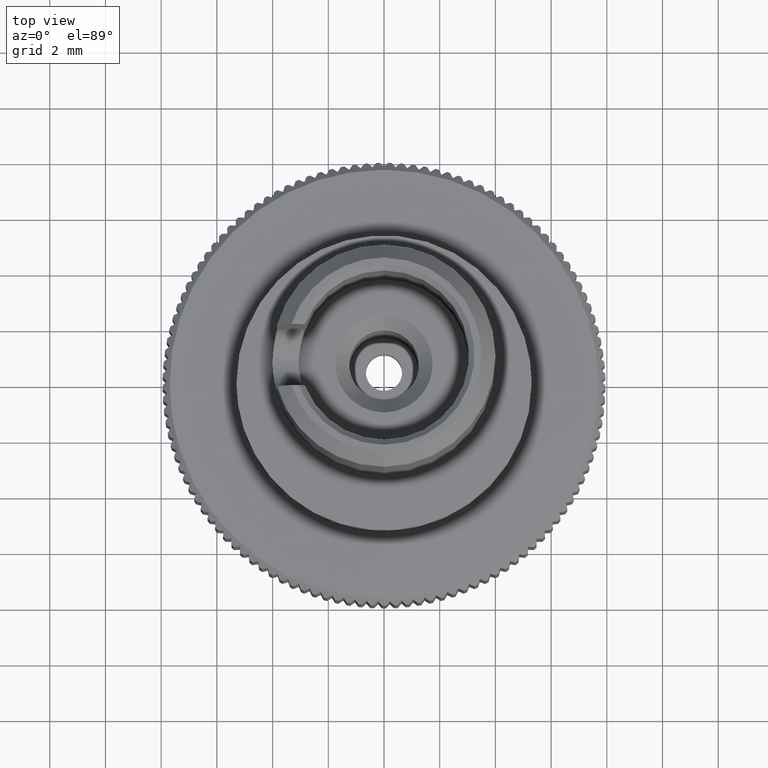
[diagram: clean part render]
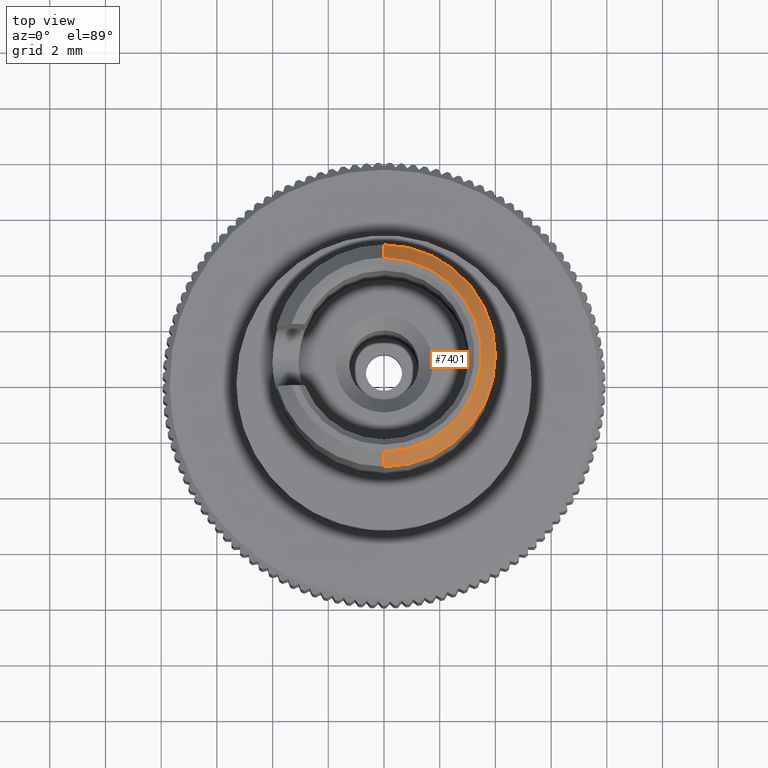
[diagram: same view with one face highlighted and labeled with its STEP entity id]
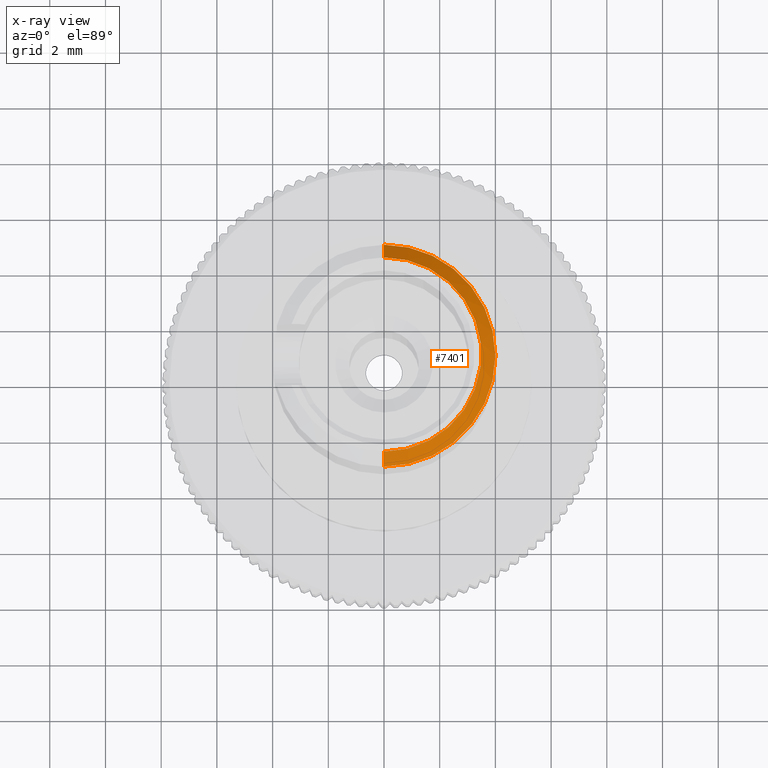
[diagram: x-ray of the same camera — body ghosted, the highlighted face saturated]
A machine part, top view. The second image highlights one B-rep face of the part: STEP entity #7401.
The next image is the same camera in x-ray: the body ghosted, the highlighted face saturated — about 0% of this face is hidden behind the body in this view.
In plain terms, the highlighted conical surface has half-angle 45 deg.
Its self-contained STEP definition (entity closure, byte-faithful):
#1290 = DIRECTION ( 'NONE',  ( 0.000000000000000000, 0.9975027964162092031, -0.07062698593202719477 ) ) ;
#1470 = AXIS2_PLACEMENT_3D ( 'NONE', #6273, #7256, #5359 ) ;
#1614 = EDGE_LOOP ( 'NONE', ( #12931, #9841, #10230, #10564 ) ) ;
#1899 = EDGE_CURVE ( 'NONE', #1946, #8941, #11347, .T. ) ;
#1946 = VERTEX_POINT ( 'NONE', #6205 ) ;
#1989 = EDGE_CURVE ( 'NONE', #9124, #1946, #7192, .T. ) ;
#2075 = EDGE_CURVE ( 'NONE', #9124, #8709, #2132, .T. ) ;
#2132 = CIRCLE ( 'NONE', #12917, 3.500000000558781466 ) ;
#3390 = CARTESIAN_POINT ( 'NONE',  ( -1.279750473368220906E-16, 4.897750020000000148, 12.53797439399999902 ) ) ;
#3482 = DIRECTION ( 'NONE',  ( -2.559500947537984150E-16, -0.07062698593202709763, -0.9975027964162093141 ) ) ;
#4811 = CARTESIAN_POINT ( 'NONE',  ( 2.358764014629480996E-31, 0.9430523269859386604, 13.31923373580156067 ) ) ;
#5359 = DIRECTION ( 'NONE',  ( 0.000000000000000000, 0.9975027964162805905, -0.07062698593101973676 ) ) ;
#6205 = CARTESIAN_POINT ( 'NONE',  ( 3.618836723583852235E-16, -3.082272351946662603, 13.10299028149180245 ) ) ;
#6273 = CARTESIAN_POINT ( 'NONE',  ( 0.000000000000000000, 0.9077388340312130266, 12.82048233774557922 ) ) ;
#6683 = LINE ( 'NONE', #11104, #7903 ) ;
#6689 = CONICAL_SURFACE ( 'NONE', #10733, 3.500000000558726398, 0.7853981633002439233 ) ;
#6817 = DIRECTION ( 'NONE',  ( -1.809840476633426438E-16, 0.6554001708377257263, -0.7552818123494566827 ) ) ;
#7192 = LINE ( 'NONE', #9564, #13134 ) ;
#7256 = DIRECTION ( 'NONE',  ( -0.000000000000000000, 0.07062698593101986166, 0.9975027964162804794 ) ) ;
#7401 = ADVANCED_FACE ( 'NONE', ( #13112 ), #6689, .T. ) ;
#7903 = VECTOR ( 'NONE', #6817, 1000.000000000000000 ) ;
#8158 = CARTESIAN_POINT ( 'NONE',  ( 4.286263797699905797E-16, -2.548207461028184628, 13.56642818660306560 ) ) ;
#8709 = VERTEX_POINT ( 'NONE', #10366 ) ;
#8941 = VERTEX_POINT ( 'NONE', #3390 ) ;
#9124 = VERTEX_POINT ( 'NONE', #8158 ) ;
#9564 = CARTESIAN_POINT ( 'NONE',  ( 4.286263797699980739E-16, -2.548207461028124232, 13.56642818660311711 ) ) ;
#9841 = ORIENTED_EDGE ( 'NONE', *, *, #1989, .T. ) ;
#10230 = ORIENTED_EDGE ( 'NONE', *, *, #1899, .T. ) ;
#10366 = CARTESIAN_POINT ( 'NONE',  ( -6.398752366883053443E-17, 4.434312115000052401, 13.07203928499994383 ) ) ;
#10564 = ORIENTED_EDGE ( 'NONE', *, *, #13148, .F. ) ;
#10733 = AXIS2_PLACEMENT_3D ( 'NONE', #4811, #3482, #12139 ) ;
#10848 = DIRECTION ( 'NONE',  ( 2.559500947537984150E-16, 0.07062698593202709763, 0.9975027964162093141 ) ) ;
#11104 = CARTESIAN_POINT ( 'NONE',  ( 2.358764014629480996E-31, 4.434312115000001775, 13.07203928500000245 ) ) ;
#11347 = CIRCLE ( 'NONE', #1470, 4.000000000304424042 ) ;
#12139 = DIRECTION ( 'NONE',  ( 0.000000000000000000, 0.9975027964162092031, -0.07062698593202730579 ) ) ;
#12872 = CARTESIAN_POINT ( 'NONE',  ( -1.412483392289889226E-29, 0.9430523269859346636, 13.31923373580150383 ) ) ;
#12917 = AXIS2_PLACEMENT_3D ( 'NONE', #12872, #10848, #1290 ) ;
#12931 = ORIENTED_EDGE ( 'NONE', *, *, #2075, .F. ) ;
#13112 = FACE_OUTER_BOUND ( 'NONE', #1614, .T. ) ;
#13134 = VECTOR ( 'NONE', #13857, 1000.000000000000114 ) ;
#13148 = EDGE_CURVE ( 'NONE', #8709, #8941, #6683, .T. ) ;
#13857 = DIRECTION ( 'NONE',  ( -9.438844204821078151E-17, -0.7552818122220410491, -0.6554001709845591606 ) ) ;